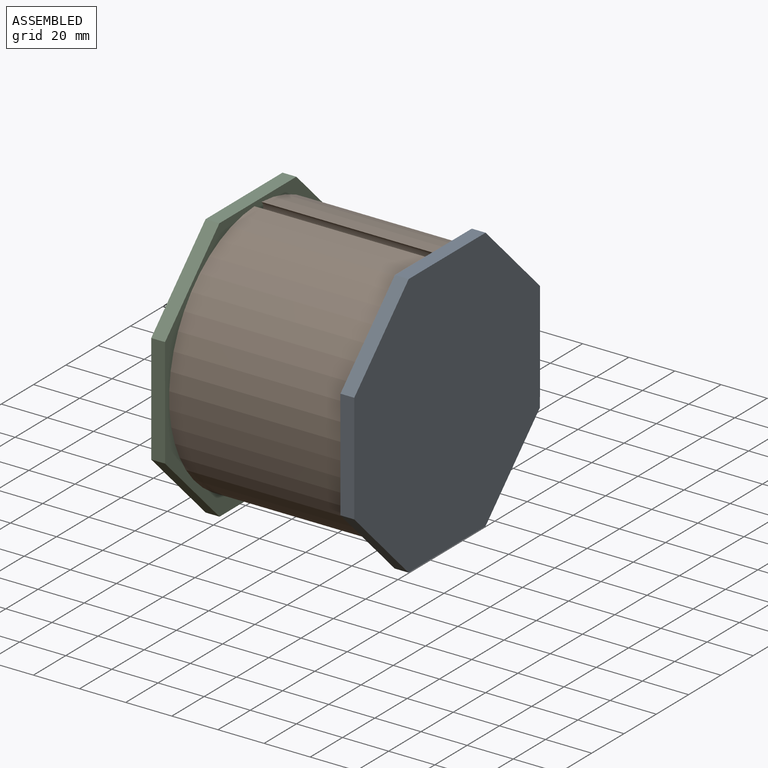
[diagram: assembled view]
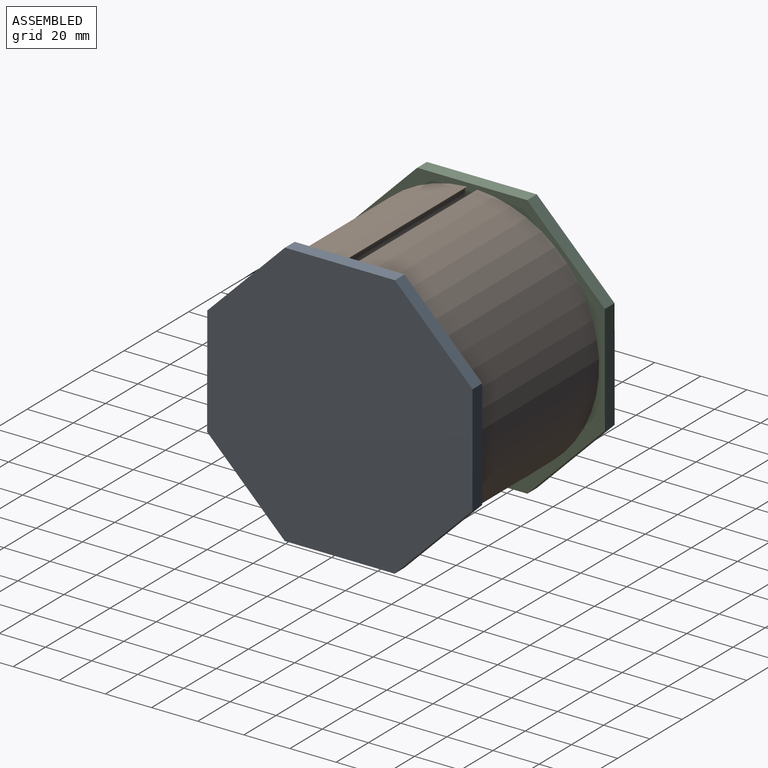
[diagram: assembled view, second angle]
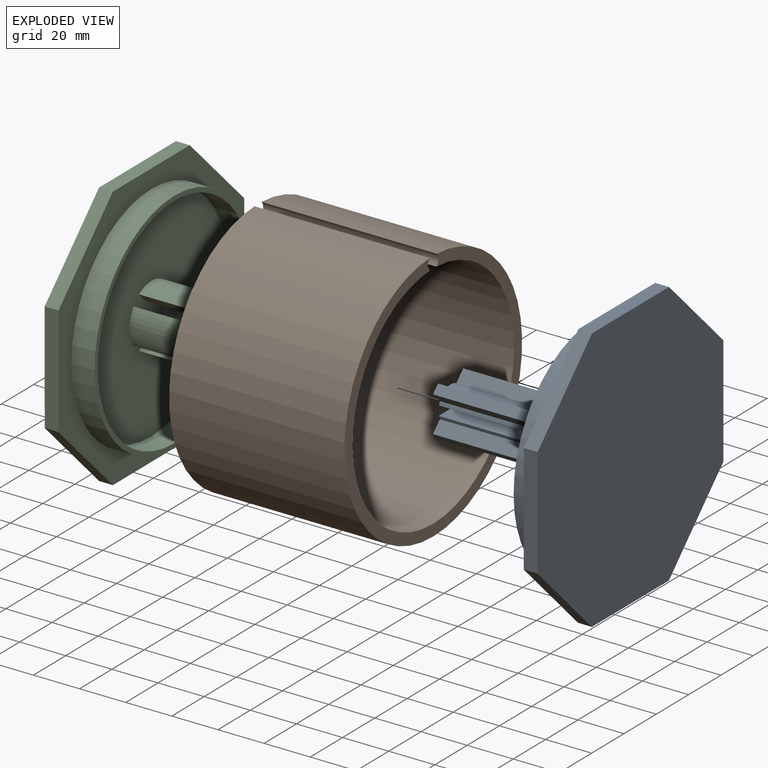
[diagram: exploded view]
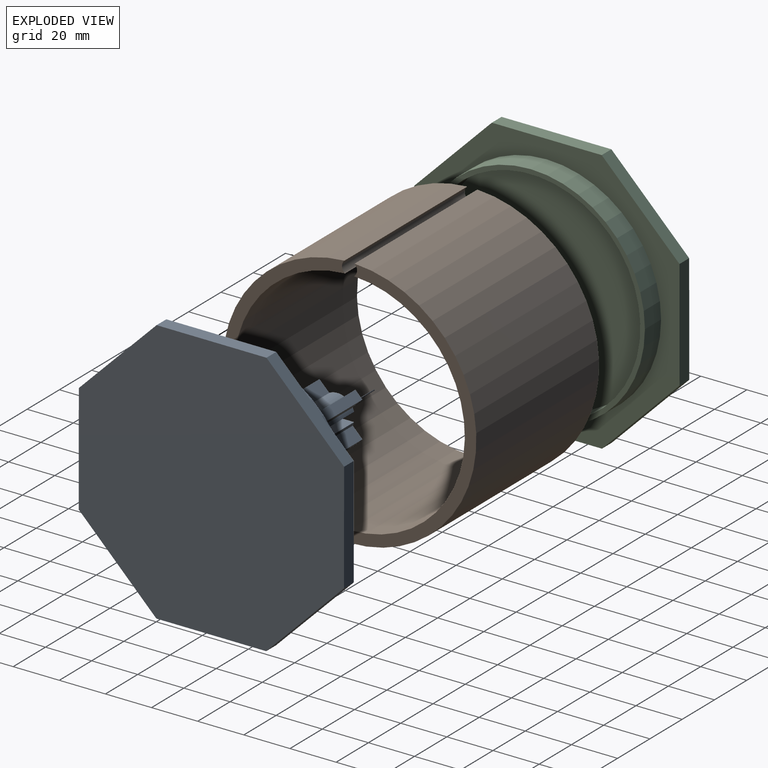
[diagram: exploded view, second angle]
ASSEMBLY  parts=3 mates=2
PART A: 35 faces, bbox 78x115x115 mm
  f0: plane 95x95mm, normal (-1,0,0), area 6811mm2, adj f1,f2,f3,f4,f10,f11,f12,f13
  f1: cylinder r=7.5mm len=72mm, axis (1,0,0), area 530.9mm2, adj f0,f6,f10,f19
  f2: cylinder r=7.5mm len=72mm, axis (1,0,0), area 337.3mm2, adj f0,f5,f6,f7,f8,f9,f16,f20
  f3: cylinder r=7.5mm len=72mm, axis (1,0,0), area 530.9mm2, adj f0,f5,f13,f17
  f4: cylinder r=7.5mm len=72mm, axis (1,0,0), area 337.3mm2, adj f0,f5,f6,f7,f8,f9,f12,f14
  f5: plane 21.71x8.86mm, normal (-1,0,0), area 109mm2, adj f2,f3,f4,f8,f13,f14,f15,f16
  f6: plane 21.71x8.86mm, normal (-1,0,0), area 109mm2, adj f1,f2,f4,f9,f10,f11,f12,f19
  f7: plane 15x4mm, normal (-1,0,0), area 59.3mm2, adj f2,f4,f8,f9
  f8: plane 47.8x14.46mm, normal (0,0,1), area 691mm2, adj f2,f4,f5,f7
  f9: plane 47.8x14.46mm, normal (0,0,-1), area 691mm2, adj f2,f4,f6,f7
  f10: plane 72x4.24mm, normal (0,-0.71,0.71), area 432mm2, adj f0,f1,f6,f11
  f11: plane 72x3.07mm, normal (0,0.71,0.71), area 312.8mm2, adj f0,f6,f10,f12
  f12: plane 72x4.24mm, normal (0,0.71,-0.71), area 432mm2, adj f0,f4,f6,f11
  f13: plane 72x4.24mm, normal (0,-0.71,-0.71), area 432mm2, adj f0,f3,f5,f15
  f14: plane 72x4.24mm, normal (0,0.71,0.71), area 432mm2, adj f0,f4,f5,f15
  f15: plane 72x3.07mm, normal (0,0.71,-0.71), area 312.8mm2, adj f0,f5,f13,f14
  f16: plane 72x4.24mm, normal (0,-0.71,0.71), area 432mm2, adj f0,f2,f5,f18
  f17: plane 72x4.24mm, normal (0,0.71,-0.71), area 432mm2, adj f0,f3,f5,f18
  f18: plane 72x3.07mm, normal (0,-0.71,-0.71), area 312.8mm2, adj f0,f5,f16,f17
  f19: plane 72x4.24mm, normal (0,0.71,0.71), area 432mm2, adj f0,f1,f6,f21
  f20: plane 72x4.24mm, normal (0,-0.71,-0.71), area 432mm2, adj f0,f2,f6,f21
  f21: plane 72x3.07mm, normal (0,-0.71,0.71), area 312.8mm2, adj f0,f6,f19,f20
  f22: cylinder r=47.5mm len=95mm, axis (1,0,0), area 2984.5mm2, adj f0,f24
  f23: cylinder r=49.5mm len=99mm, axis (1,0,0), area 3110.2mm2, adj f24,f34
  f24: plane 99x99mm, normal (-1,0,0), area 609.5mm2, adj f22,f23
  f25: plane 115.04x115.04mm, normal (1,0,0), area 10955.9mm2, adj f26,f27,f28,f29,f30,f31,f32,f33
  f26: plane 47.63x6mm, normal (0,1,0), area 285.8mm2, adj f25,f27,f33,f34
  f27: plane 33.71x33.65mm, normal (0,0.71,0.71), area 285.8mm2, adj f25,f26,f28,f34
  f28: plane 47.63x6mm, normal (0,0,1), area 285.8mm2, adj f25,f27,f29,f34
  f29: plane 33.71x33.65mm, normal (0,-0.71,0.71), area 285.8mm2, adj f25,f28,f30,f34
  f30: plane 47.63x6mm, normal (0,-1,0), area 285.8mm2, adj f25,f29,f31,f34
  f31: plane 33.71x33.65mm, normal (0,-0.71,-0.71), area 285.8mm2, adj f25,f30,f32,f34
  f32: plane 47.63x6mm, normal (0,0,-1), area 285.8mm2, adj f25,f31,f33,f34
  f33: plane 33.71x33.65mm, normal (0,0.71,-0.71), area 285.8mm2, adj f25,f26,f32,f34
  f34: plane 115.04x115.04mm, normal (-1,0,0), area 3258.3mm2, adj f23,f26,f27,f28,f29,f30,f31,f32
PART B: 6 faces, bbox 76x110x110 mm
  f0: cylinder r=55mm len=110mm, axis (-1,0,0), area 25929.3mm2, adj f1,f2,f4,f5
  f1: plane 110x109.96mm, normal (1,0,0), area 1620.4mm2, adj f0,f3,f4,f5
  f2: plane 110x109.96mm, normal (-1,0,0), area 1620.4mm2, adj f0,f3,f4,f5
  f3: cylinder r=50mm len=100mm, axis (-1,0,0), area 23579.9mm2, adj f1,f2,f4,f5
  f4: cylinder r=3.25mm len=76mm, axis (-1,0,0), area 433.6mm2, adj f0,f1,f2,f3
  f5: cylinder r=3.25mm len=76mm, axis (-1,0,0), area 433.6mm2, adj f0,f1,f2,f3
PART C: 34 faces, bbox 46x115x115 mm
  f0: plane 95x95mm, normal (-1,0,0), area 6819.2mm2, adj f1,f2,f3,f4,f6,f7,f8,f9
  f1: plane 40x4.14mm, normal (0,-0.71,0.71), area 234.4mm2, adj f0,f2,f4,f5
  f2: cylinder r=13.49mm len=40mm, axis (1,0,0), area 652.3mm2, adj f0,f1,f3,f5
  f3: plane 40x4.14mm, normal (0,-0.71,-0.71), area 234.2mm2, adj f0,f2,f4,f5
  f4: cylinder r=7.8mm len=40mm, axis (1,0,0), area 292.6mm2, adj f0,f1,f3,f5
  f5: plane 15.33x6.54mm, normal (-1,0,0), area 67.2mm2, adj f1,f2,f3,f4
  f6: cylinder r=7.8mm len=40mm, axis (1,0,0), area 292.6mm2, adj f0,f7,f9,f10
  f7: plane 40x4.14mm, normal (0,0.71,0.71), area 234.4mm2, adj f0,f6,f8,f10
  f8: cylinder r=13.49mm len=40mm, axis (1,0,0), area 652.3mm2, adj f0,f7,f9,f10
  f9: plane 40x4.14mm, normal (0,-0.71,0.71), area 234.2mm2, adj f0,f6,f8,f10
  f10: plane 15.33x6.54mm, normal (-1,0,0), area 67.2mm2, adj f6,f7,f8,f9
  f11: cylinder r=7.8mm len=40mm, axis (1,0,0), area 292.6mm2, adj f0,f12,f14,f15
  f12: plane 40x4.14mm, normal (0,0.71,-0.71), area 234.4mm2, adj f0,f11,f13,f15
  f13: cylinder r=13.49mm len=40mm, axis (1,0,0), area 652.3mm2, adj f0,f12,f14,f15
  f14: plane 40x4.14mm, normal (0,0.71,0.71), area 234.2mm2, adj f0,f11,f13,f15
  f15: plane 15.33x6.54mm, normal (-1,0,0), area 67.2mm2, adj f11,f12,f13,f14
  f16: cylinder r=7.8mm len=40mm, axis (1,0,0), area 292.6mm2, adj f0,f17,f19,f20
  f17: plane 40x4.14mm, normal (0,-0.71,-0.71), area 234.4mm2, adj f0,f16,f18,f20
  f18: cylinder r=13.49mm len=40mm, axis (1,0,0), area 652.3mm2, adj f0,f17,f19,f20
  f19: plane 40x4.14mm, normal (0,0.71,-0.71), area 234.2mm2, adj f0,f16,f18,f20
  f20: plane 15.33x6.54mm, normal (-1,0,0), area 67.2mm2, adj f16,f17,f18,f19
  f21: cylinder r=47.5mm len=95mm, axis (1,0,0), area 2984.5mm2, adj f0,f23
  f22: cylinder r=49.5mm len=99mm, axis (1,0,0), area 3110.2mm2, adj f23,f33
  f23: plane 99x99mm, normal (-1,0,0), area 609.5mm2, adj f21,f22
  f24: plane 115.04x115.04mm, normal (1,0,0), area 10955.9mm2, adj f25,f26,f27,f28,f29,f30,f31,f32
  f25: plane 47.63x6mm, normal (0,1,0), area 285.8mm2, adj f24,f26,f32,f33
  f26: plane 33.71x33.65mm, normal (0,0.71,0.71), area 285.8mm2, adj f24,f25,f27,f33
  f27: plane 47.63x6mm, normal (0,0,1), area 285.8mm2, adj f24,f26,f28,f33
  f28: plane 33.71x33.65mm, normal (0,-0.71,0.71), area 285.8mm2, adj f24,f27,f29,f33
  f29: plane 47.63x6mm, normal (0,-1,0), area 285.8mm2, adj f24,f28,f30,f33
  f30: plane 33.71x33.65mm, normal (0,-0.71,-0.71), area 285.8mm2, adj f24,f29,f31,f33
  f31: plane 47.63x6mm, normal (0,0,-1), area 285.8mm2, adj f24,f30,f32,f33
  f32: plane 33.71x33.65mm, normal (0,0.71,-0.71), area 285.8mm2, adj f24,f25,f31,f33
  f33: plane 115.04x115.04mm, normal (-1,0,0), area 3258.3mm2, adj f22,f25,f26,f27,f28,f29,f30,f31
PLACE A t=(197.21,65.85,45.02)mm
PLACE B t=(121.21,65.85,45.95)mm
PLACE C rot(axis=(0,1,0),180deg) t=(121.21,65.85,45.02)mm
MATE fastened C.f18 <-> B.f2  axis (1,0,0) through (121.21,65.85,45.02)mm
MATE fastened B.f1 <-> A.f23  axis (1,0,0) through (197.21,65.85,45.02)mm
